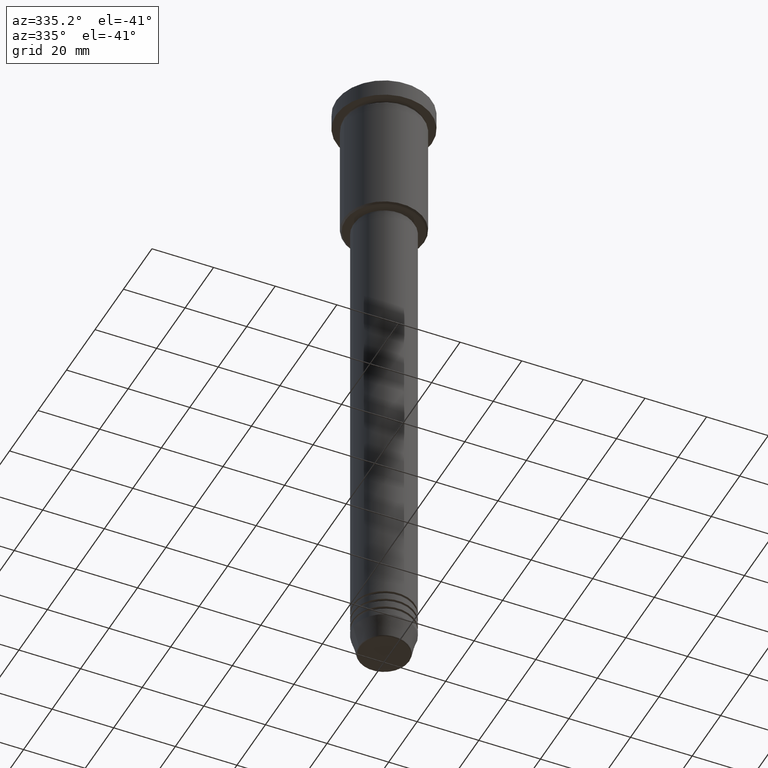
[diagram: clean part render]
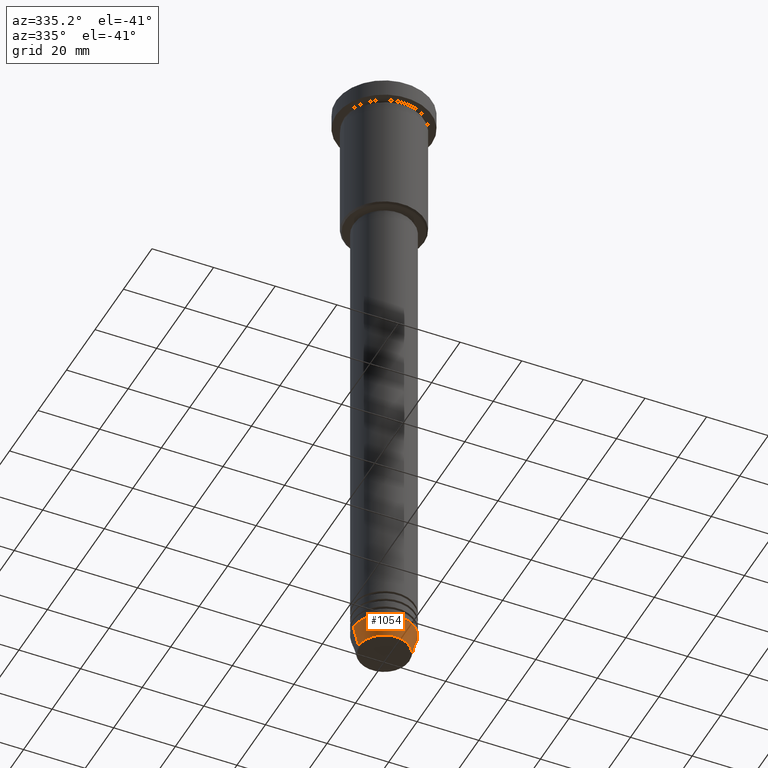
[diagram: same view with one face highlighted and labeled with its STEP entity id]
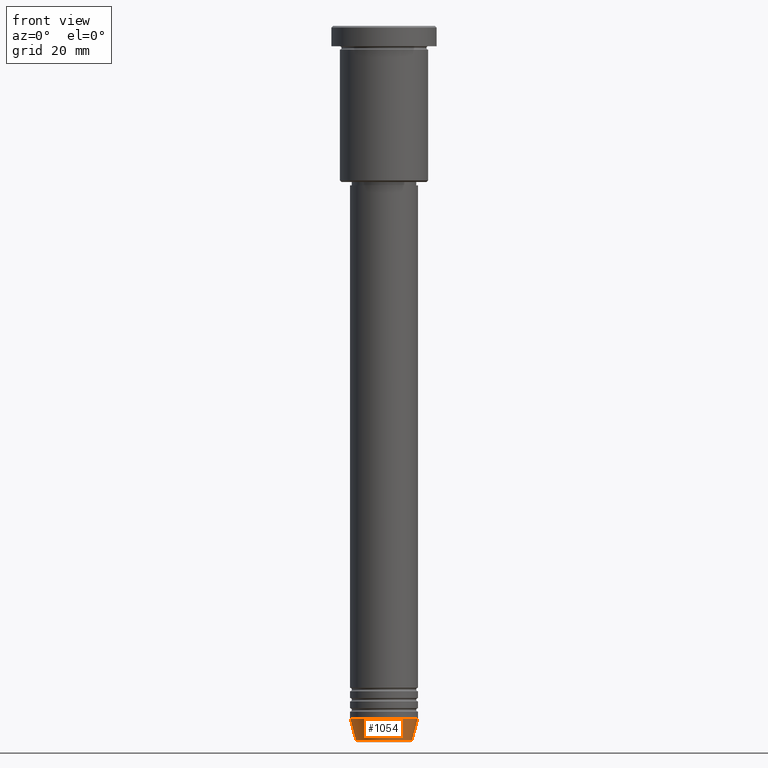
[diagram: same view with one face highlighted and labeled with its STEP entity id]
A machine part, auxiliary view. The second image highlights one B-rep face of the part: STEP entity #1054.
A second angle (front view) of the same face is appended — the face is thin or edge-on in the first view.
In plain terms, the highlighted conical surface has half-angle 15 deg.
Its self-contained STEP definition (entity closure, byte-faithful):
#12 = DIRECTION ( 'NONE',  ( -0.000000000000000000, -0.000000000000000000, 1.000000000000000000 ) ) ;
#37 = CARTESIAN_POINT ( 'NONE',  ( -8.223655072137198374, 1.115877042642912448E-15, -210.6294095225512706 ) ) ;
#43 = VECTOR ( 'NONE', #139, 1000.000000000000000 ) ;
#46 = LINE ( 'NONE', #361, #43 ) ;
#78 = AXIS2_PLACEMENT_3D ( 'NONE', #464, #12, #1012 ) ;
#102 = EDGE_LOOP ( 'NONE', ( #570, #1031, #441, #986 ) ) ;
#139 = DIRECTION ( 'NONE',  ( 0.2588190451025213501, 0.000000000000000000, 0.9659258262890680902 ) ) ;
#184 = CARTESIAN_POINT ( 'NONE',  ( 0.000000000000000000, 0.000000000000000000, -210.6294095225512706 ) ) ;
#185 = VERTEX_POINT ( 'NONE', #913 ) ;
#304 = EDGE_CURVE ( 'NONE', #962, #695, #623, .T. ) ;
#320 = EDGE_CURVE ( 'NONE', #828, #185, #1044, .T. ) ;
#361 = CARTESIAN_POINT ( 'NONE',  ( 10.00000000000000000, 0.000000000000000000, -204.0000000000000284 ) ) ;
#377 = CARTESIAN_POINT ( 'NONE',  ( 10.00000000000000000, 0.000000000000000000, -204.0000000000000284 ) ) ;
#378 = DIRECTION ( 'NONE',  ( 1.000000000000000000, 0.000000000000000000, 0.000000000000000000 ) ) ;
#384 = DIRECTION ( 'NONE',  ( 1.000000000000000000, 0.000000000000000000, 0.000000000000000000 ) ) ;
#441 = ORIENTED_EDGE ( 'NONE', *, *, #959, .T. ) ;
#446 = VECTOR ( 'NONE', #658, 1000.000000000000000 ) ;
#464 = CARTESIAN_POINT ( 'NONE',  ( 0.000000000000000000, 0.000000000000000000, -204.0000000000000284 ) ) ;
#525 = AXIS2_PLACEMENT_3D ( 'NONE', #184, #1029, #378 ) ;
#566 = AXIS2_PLACEMENT_3D ( 'NONE', #838, #943, #384 ) ;
#570 = ORIENTED_EDGE ( 'NONE', *, *, #713, .F. ) ;
#623 = CIRCLE ( 'NONE', #78, 10.00000000000000000 ) ;
#628 = CONICAL_SURFACE ( 'NONE', #566, 10.00000000000000000, 0.2617993877991500740 ) ;
#649 = LINE ( 'NONE', #653, #446 ) ;
#653 = CARTESIAN_POINT ( 'NONE',  ( -10.00000000000000000, 1.224646799147353256E-15, -204.0000000000000284 ) ) ;
#658 = DIRECTION ( 'NONE',  ( -0.2588190451025213501, 3.169619151431772337E-17, 0.9659258262890680902 ) ) ;
#695 = VERTEX_POINT ( 'NONE', #377 ) ;
#713 = EDGE_CURVE ( 'NONE', #828, #962, #649, .T. ) ;
#828 = VERTEX_POINT ( 'NONE', #37 ) ;
#838 = CARTESIAN_POINT ( 'NONE',  ( 0.000000000000000000, 0.000000000000000000, -204.0000000000000284 ) ) ;
#875 = CARTESIAN_POINT ( 'NONE',  ( -10.00000000000000000, 1.224646799147353256E-15, -204.0000000000000284 ) ) ;
#913 = CARTESIAN_POINT ( 'NONE',  ( 8.223655072137198374, 0.000000000000000000, -210.6294095225512706 ) ) ;
#943 = DIRECTION ( 'NONE',  ( -0.000000000000000000, -0.000000000000000000, 1.000000000000000000 ) ) ;
#959 = EDGE_CURVE ( 'NONE', #185, #695, #46, .T. ) ;
#962 = VERTEX_POINT ( 'NONE', #875 ) ;
#986 = ORIENTED_EDGE ( 'NONE', *, *, #304, .F. ) ;
#1012 = DIRECTION ( 'NONE',  ( 1.000000000000000000, 0.000000000000000000, 0.000000000000000000 ) ) ;
#1029 = DIRECTION ( 'NONE',  ( -0.000000000000000000, -0.000000000000000000, 1.000000000000000000 ) ) ;
#1031 = ORIENTED_EDGE ( 'NONE', *, *, #320, .T. ) ;
#1044 = CIRCLE ( 'NONE', #525, 8.223655072137198374 ) ;
#1054 = ADVANCED_FACE ( 'NONE', ( #1059 ), #628, .T. ) ;
#1059 = FACE_OUTER_BOUND ( 'NONE', #102, .T. ) ;